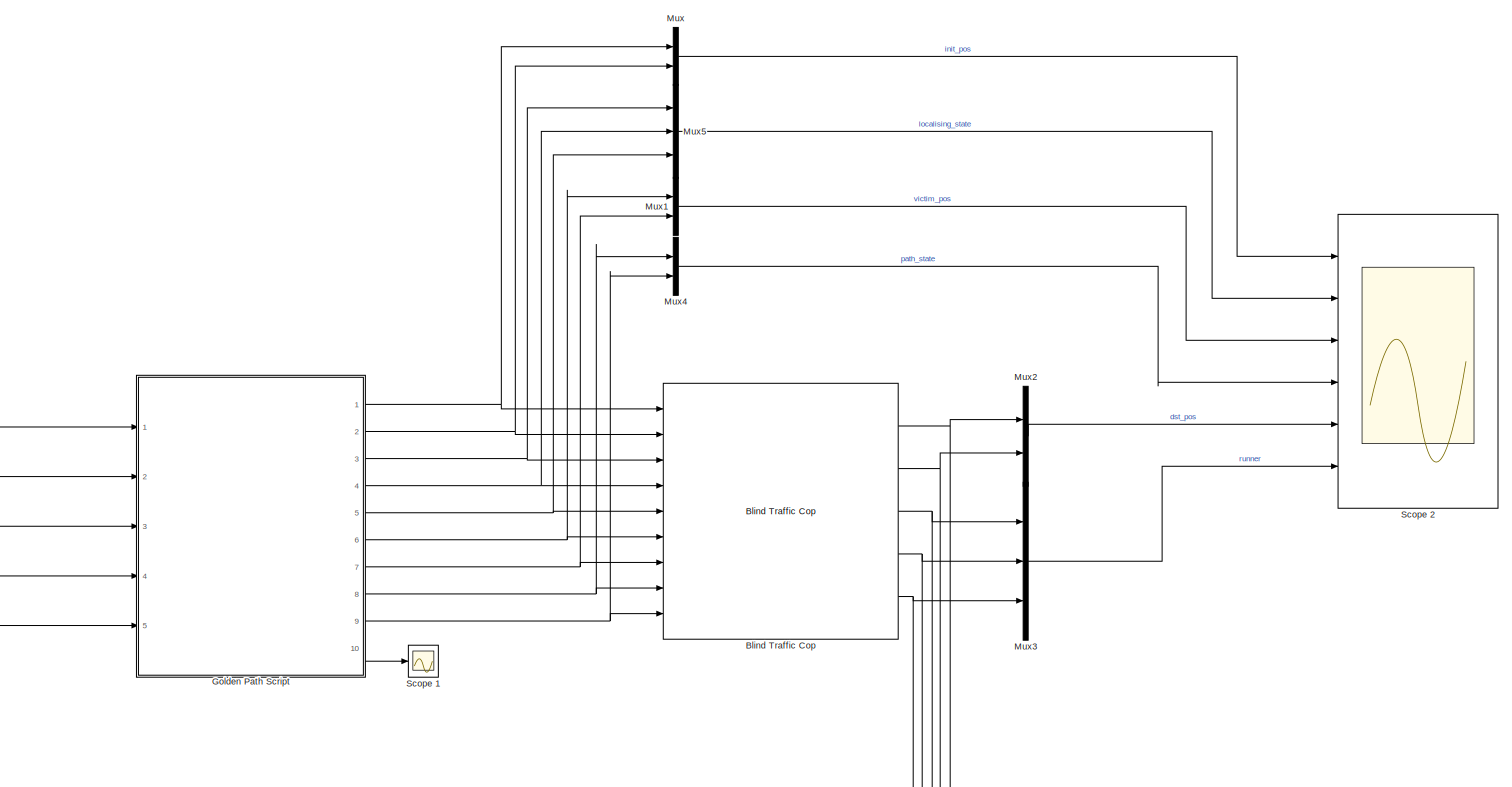
[diagram: root canvas - part 1/1, most of the canvas]
MODEL traffic_blind_test
KIND model
BLOCK [Reference] Blind Traffic Cop  REF=tinbot/Blind Traffic Cop  (lib defined in slx_3c5c153e9850, slx_5b2796442827, +1 more)
  FunctionWithSeparateData = off
  GeneratePreprocessorConditionals = off
  Ports = [9, 5]
  SID = 107
  ShowPortLabels = FromPortIcon
  SourceBlock = tinbot/Blind Traffic Cop
  SystemSampleTime = -1
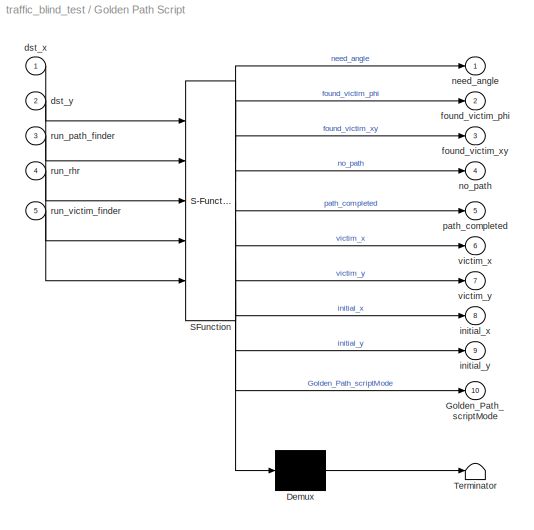
BLOCK [SubSystem] Golden Path Script
  ErrorFcn = Stateflow.Translate.translate
  PermitHierarchicalResolution = ExplicitOnly
  Ports = [5, 10]
  RequestExecContextInheritance = off
  SFBlockType = Chart
  SID = 23
  TreatAsAtomicUnit = on
  Variant = off
BLOCK [Demux] Golden Path Script/ Demux 
  Outputs = 1
  Ports = [1, 1]
  SID = 23::78
BLOCK [S-Function] Golden Path Script/ SFunction 
  EnableBusSupport = on
  FunctionName = sf_sfun
  PortCounts = [5 11]
  Ports = [5, 11]
  SFunctionDeploymentMode = off
  SID = 23::77
  Tag = Stateflow S-Function traffic_blind_test 3
BLOCK [Terminator] Golden Path Script/ Terminator 
  SID = 23::79
BLOCK [Outport] Golden Path Script/Golden_Path_scriptMode
  IconDisplay = Port number
  Port = 10
  SID = 23::108
BLOCK [Inport] Golden Path Script/dst_x
  IconDisplay = Port number
  SID = 23::97
BLOCK [Inport] Golden Path Script/dst_y
  IconDisplay = Port number
  Port = 2
  SID = 23::98
BLOCK [Outport] Golden Path Script/found_victim_phi
  IconDisplay = Port number
  Port = 2
  SID = 23::95
BLOCK [Outport] Golden Path Script/found_victim_xy
  IconDisplay = Port number
  Port = 3
  SID = 23::94
BLOCK [Outport] Golden Path Script/initial_x
  IconDisplay = Port number
  Port = 8
  SID = 23::106
BLOCK [Outport] Golden Path Script/initial_y
  IconDisplay = Port number
  Port = 9
  SID = 23::105
BLOCK [Outport] Golden Path Script/need_angle
  IconDisplay = Port number
  SID = 23::93
BLOCK [Outport] Golden Path Script/no_path
  IconDisplay = Port number
  Port = 4
  SID = 23::92
BLOCK [Outport] Golden Path Script/path_completed
  IconDisplay = Port number
  Port = 5
  SID = 23::91
BLOCK [Inport] Golden Path Script/run_path_finder
  IconDisplay = Port number
  Port = 3
  SID = 23::100
BLOCK [Inport] Golden Path Script/run_rhr
  IconDisplay = Port number
  Port = 4
  SID = 23::101
BLOCK [Inport] Golden Path Script/run_victim_finder
  IconDisplay = Port number
  Port = 5
  SID = 23::102
BLOCK [Outport] Golden Path Script/victim_x
  IconDisplay = Port number
  Port = 6
  SID = 23::90
BLOCK [Outport] Golden Path Script/victim_y
  IconDisplay = Port number
  Port = 7
  SID = 23::89
BLOCK [Mux] Mux
  DisplayOption = bar
  Inputs = 2
  Ports = [2, 1]
  SID = 25
BLOCK [Mux] Mux1
  DisplayOption = bar
  Inputs = 2
  Ports = [2, 1]
  SID = 26
BLOCK [Mux] Mux2
  DisplayOption = bar
  Inputs = 2
  Ports = [2, 1]
  SID = 27
BLOCK [Mux] Mux3
  DisplayOption = bar
  Inputs = 3
  Ports = [3, 1]
  SID = 28
BLOCK [Mux] Mux4
  DisplayOption = bar
  Inputs = 2
  Ports = [2, 1]
  SID = 29
BLOCK [Mux] Mux5
  DisplayOption = bar
  Inputs = 3
  Ports = [3, 1]
  SID = 30
BLOCK [Scope] Scope 1
  Ports = [1]
  SID = 103
  ScopeSpecificationString = Simulink.scopes.TimeScopeBlockCfg('CurrentConfiguration', extmgr.ConfigurationSet(extmgr.Configuration('Core','General UI',true),extmgr.Configuration('Core','Source UI',true),extmgr.Configuration('Sources','WiredSimulink',true,'DataLoggingVariableName','ScopeData1'),extmgr.Configuration('Visuals','Time Domain',true,'SerializedDisplays',{struct('MinYLimReal','-2.75','MaxYLimReal','34.75','YLabelRea...<+1487ch>
BLOCK [Scope] Scope 2
  NumInputPorts = 6
  Ports = [6]
  SID = 9
  ScopeSpecificationString = Simulink.scopes.TimeScopeBlockCfg('CurrentConfiguration', extmgr.ConfigurationSet(extmgr.Configuration('Core','General UI',true),extmgr.Configuration('Core','Source UI',true),extmgr.Configuration('Sources','WiredSimulink',true),extmgr.Configuration('Visuals','Time Domain',true,'SerializedDisplays',{struct('MinYLimReal','-0.125','MaxYLimReal','1.125','YLabelReal','','MinYLimMag','0.00000','MaxYLimM...<+4952ch>
NET Blind Traffic Cop:1 -> Golden Path Script:1, Mux2:1
NET Blind Traffic Cop:2 -> Golden Path Script:2, Mux2:2
NET Blind Traffic Cop:3 -> Golden Path Script:3, Mux3:1
NET Blind Traffic Cop:4 -> Golden Path Script:4, Mux3:2
NET Blind Traffic Cop:5 -> Golden Path Script:5, Mux3:3
LINE Golden Path Script/ Demux :1 -> Golden Path Script/ Terminator :1
LINE Golden Path Script/ SFunction :1 -> Golden Path Script/ Demux :1
LINE Golden Path Script/ SFunction :10 -> Golden Path Script/initial_y:1
LINE Golden Path Script/ SFunction :11 -> Golden Path Script/Golden_Path_scriptMode:1
LINE Golden Path Script/ SFunction :2 -> Golden Path Script/need_angle:1
LINE Golden Path Script/ SFunction :3 -> Golden Path Script/found_victim_phi:1
LINE Golden Path Script/ SFunction :4 -> Golden Path Script/found_victim_xy:1
LINE Golden Path Script/ SFunction :5 -> Golden Path Script/no_path:1
LINE Golden Path Script/ SFunction :6 -> Golden Path Script/path_completed:1
LINE Golden Path Script/ SFunction :7 -> Golden Path Script/victim_x:1
LINE Golden Path Script/ SFunction :8 -> Golden Path Script/victim_y:1
LINE Golden Path Script/ SFunction :9 -> Golden Path Script/initial_x:1
LINE Golden Path Script/dst_x:1 -> Golden Path Script/ SFunction :1
LINE Golden Path Script/dst_y:1 -> Golden Path Script/ SFunction :2
LINE Golden Path Script/run_path_finder:1 -> Golden Path Script/ SFunction :3
LINE Golden Path Script/run_rhr:1 -> Golden Path Script/ SFunction :4
LINE Golden Path Script/run_victim_finder:1 -> Golden Path Script/ SFunction :5
NET Golden Path Script:1 -> Blind Traffic Cop:1, Mux:1
LINE Golden Path Script:10 -> Scope 1:1
NET Golden Path Script:2 -> Blind Traffic Cop:2, Mux:2
NET Golden Path Script:3 -> Blind Traffic Cop:3, Mux5:1
NET Golden Path Script:4 -> Blind Traffic Cop:4, Mux5:2
NET Golden Path Script:5 -> Blind Traffic Cop:5, Mux5:3
NET Golden Path Script:6 -> Blind Traffic Cop:6, Mux1:1
NET Golden Path Script:7 -> Blind Traffic Cop:7, Mux1:2
NET Golden Path Script:8 -> Blind Traffic Cop:8, Mux4:1
NET Golden Path Script:9 -> Blind Traffic Cop:9, Mux4:2
LINE Mux1:1 -> Scope 2:3
LINE Mux2:1 -> Scope 2:5
LINE Mux3:1 -> Scope 2:6
LINE Mux4:1 -> Scope 2:4
LINE Mux5:1 -> Scope 2:2
LINE Mux:1 -> Scope 2:1
note: NET lines group one-source signal fan-out (src -> all destinations, sorted); 1:1 wires keep LINE
CHART Golden Path Script states=42 transitions=42
  STATE_LABEL 'InitWait\\nen:\\nexpect_dst_x = -1;\\nexpect_dst_y = -1;\\nexpect_run_path_finder = 0;\\nexpect_run_rhr = 1;\\nexpect_run_victim_finder = 0;'
  STATE_LABEL 'Consistent'
  STATE_LABEL 'Failing\\nen:\\nrem = 2\\ndu:\\nassert(rem > 0);\\nrem = rem - 1;'
  STATE_LABEL 'StartInterruptA\\nen:\\nneed_angle = 1;\\nexpect_run_rhr = 0;\\nexpect_run_victim_finder = 1;\\n'
  STATE_LABEL 'DoneInterruptA\\nen:\\nneed_angle = 0;\\n'
  STATE_LABEL '<!DOCTYPE HTML PUBLIC \\"-//W3C//DTD HTML 4.0//EN\\" \\"http://www.w3.org/TR/REC-html40/strict.dtd\\">\\n<html><head><meta name=\\"qrichtext\\" content=\\"1\\" /><style type=\\"text/css\\">\\np, li { white-space: pre-wrap; }\\n</style></head><body style=\\" font-family:\'Arial\'; font-size:12px; font-weight:400; font-style:normal;\\">\\n<p style=\\" margin-top:0px; margin-bottom:0px; margin-left:0px; margin-right:0p...<+681ch>'
  STATE_LABEL 'DoneIsrA\\nen:\\nfound_victim_phi = 1;\\nexpect_run_victim_finder = 0;'
  STATE_LABEL 'resumeAfterA\\nen:\\nfound_victim_phi = 0;\\nexpect_run_rhr = 1;\\n'
  STATE_LABEL 'StartInterruptB\\nen:\\nneed_angle = 1;\\nexpect_run_rhr = 0;\\nexpect_run_victim_finder = 1;\\n'
  STATE_LABEL 'DoneInterruptB\\nen:\\nfound_victim_phi = 1;\\nexpect_run_victim_finder = 0;'
  STATE_LABEL 'DoneIsrB\\nen:\\nneed_angle = 0;'
  STATE_LABEL 'resumeAfterB\\nen:\\nfound_victim_phi = 0;\\nexpect_run_rhr = 1;\\n'
  STATE_LABEL 'DoneIsrC\\nen:\\nfound_victim_xy = 1;\\nexpect_run_victim_finder = 0;\\nexpect_run_path_finder = 1;\\nexpect_dst_x = victim_x;\\nexpect_dst_y = victim_y;'
  STATE_LABEL 'StartInterruptC\\nen:\\nneed_angle = 1;\\nexpect_run_rhr = 0;\\nexpect_run_victim_finder = 1;\\n'
  STATE_LABEL 'bad_x'
  STATE_LABEL 'bad_y1'
  STATE_LABEL 'bad_r_pf'
  STATE_LABEL 'bad_r_rhr'
  STATE_LABEL 'bad_r_vf'
  STATE_LABEL 'bad_time'
  STATE_LABEL 'PathFailingA\\n% Note that traffic cop should be\\n% time-unaware here\\nen:\\nno_path = 1;\\nexpect_run_rhr = 1;\\nexpect_run_path_finder = 0;'
  STATE_LABEL 'RhrNearlyOverA\\nen:\\nexpect_run_rhr = -1;\\nexpect_run_path_finder = -1;'
  STATE_LABEL "RhrOverA\\nen:\\n% Still expect victim's coords!\\nexpect_run_rhr = 0;\\nexpect_run_path_finder = 1;"
  STATE_LABEL 'bad_combo'
  STATE_LABEL "RhringA\\n% Check that it doesn't depend on\\n% no_path in a weird way\\nen:\\nno_path = 0;"
  STATE_LABEL 'DoneA\\nen:\\npath_completed = 1;\\nexpect_run_path_finder = 0;'
  STATE_LABEL 'DockingA\\n% Waited to make sure that the traffic cop waits on us.\\nen:\\npath_completed = 0;\\nexpect_run_path_finder = -1;\\nexpect_dst_x = -1;\\nexpect_dst_y = -1;'
  STATE_LABEL 'ResumeAfterA\\nen:\\nexpect_run_path_finder = 1;\\nexpect_dst_x = initial_x;\\nexpect_dst_y = initial_y;\\n'
  STATE_LABEL 'RhrNearlyOverB\\nen:\\nexpect_run_rhr = -1;\\nexpect_run_path_finder = -1;'
  STATE_LABEL "RhringB\\n% Check that it doesn't depend on\\n% no_path in a weird way\\nen:\\nno_path = 0;"
  STATE_LABEL 'DoneB\\nen:\\npath_completed = 1;\\nexpect_run_path_finder = 0;'
  STATE_LABEL 'PathFailingb\\n% Note that traffic cop should be\\n% time-unaware here\\nen:\\nno_path = 1;\\nexpect_run_rhr = 1;\\nexpect_run_path_finder = 0;'
  STATE_LABEL 'RhrOverB\\nen:\\n% Still expect initial coords!\\nexpect_run_rhr = 0;\\nexpect_run_path_finder = 1;'
  STATE_LABEL 'TestReaction1\\nen:\\npath_completed = 0;'
  STATE_LABEL 'TestReaction2\\nen:\\nno_path = 1;'
  STATE_LABEL 'TestReaction3\\nen:\\nfound_victim_xy = 1;'
  STATE_LABEL 'TestReaction4\\nen:\\nneed_angle = 1;'
  STATE_LABEL 'TestReaction5\\nen:\\nfound_victim_phi = 1;'
  STATE_LABEL 'TestReaction6\\nen:\\npath_completed = 1;'
  STATE_LABEL 'TestReaction7\\nen:\\nfound_victim_xy = 1;\\ninitial_x = 12;\\ninitial_y = 11;\\nvictim_x = 10;\\nvictim_y = 9.01;'
